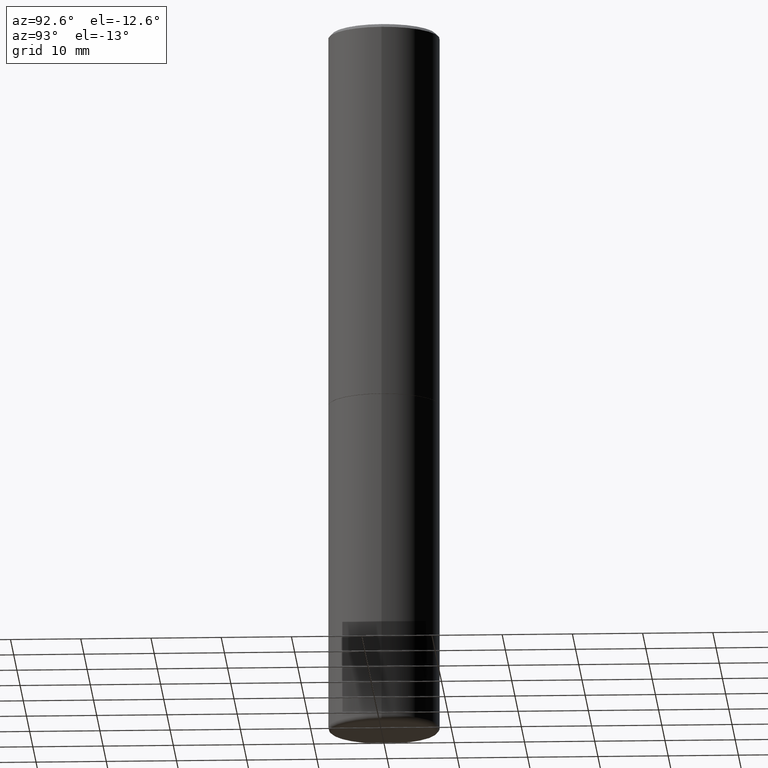
[diagram: clean part render]
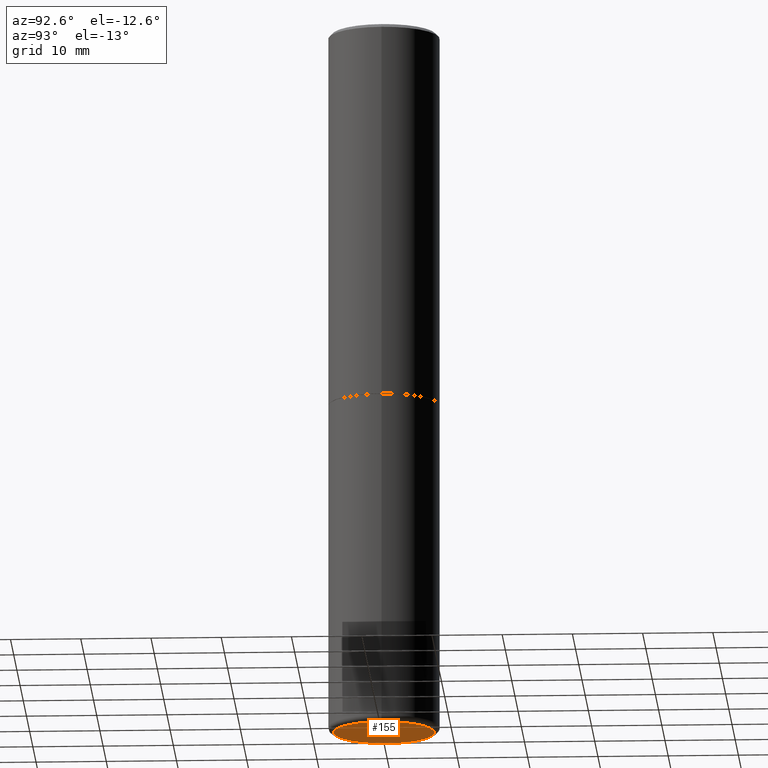
[diagram: same view with one face highlighted and labeled with its STEP entity id]
A machine part, auxiliary view. The second image highlights one B-rep face of the part: STEP entity #155.
In plain terms, the highlighted planar face has unit normal (0, -0, -1).
Its self-contained STEP definition (entity closure, byte-faithful):
#9 = DIRECTION ( 'NONE',  ( -2.445468806185136597E-29, 3.491481338843145583E-15, 1.000000000000000000 ) ) ;
#16 = DIRECTION ( 'NONE',  ( -2.445468806185136597E-29, 3.491481338843145583E-15, 1.000000000000000000 ) ) ;
#20 = CIRCLE ( 'NONE', #249, 0.2825000000000000289 ) ;
#27 = VERTEX_POINT ( 'NONE', #163 ) ;
#41 = AXIS2_PLACEMENT_3D ( 'NONE', #71, #9, #109 ) ;
#58 = EDGE_LOOP ( 'NONE', ( #322, #317 ) ) ;
#59 = CARTESIAN_POINT ( 'NONE',  ( 9.781875224740546387E-29, -1.396592535537258233E-14, -4.000000000000000000 ) ) ;
#71 = CARTESIAN_POINT ( 'NONE',  ( 9.781875224740546387E-29, -1.396592535537258233E-14, -4.000000000000000000 ) ) ;
#109 = DIRECTION ( 'NONE',  ( 1.000000000000000000, -6.982962677686269077E-15, 0.000000000000000000 ) ) ;
#155 = ADVANCED_FACE ( 'NONE', ( #156 ), #245, .T. ) ;
#156 = FACE_OUTER_BOUND ( 'NONE', #58, .T. ) ;
#163 = CARTESIAN_POINT ( 'NONE',  ( -0.2825000000000000289, -1.179968849640363848E-14, -4.000000000000000000 ) ) ;
#176 = DIRECTION ( 'NONE',  ( 1.000000000000000000, -6.982962677686269077E-15, 0.000000000000000000 ) ) ;
#182 = CARTESIAN_POINT ( 'NONE',  ( 0.2825000000000000289, -1.593861231181895394E-14, -4.000000000000000000 ) ) ;
#194 = CIRCLE ( 'NONE', #41, 0.2825000000000000289 ) ;
#238 = CARTESIAN_POINT ( 'NONE',  ( 9.781875224740546387E-29, -1.396592535537258233E-14, -4.000000000000000000 ) ) ;
#245 = PLANE ( 'NONE',  #280 ) ;
#249 = AXIS2_PLACEMENT_3D ( 'NONE', #238, #16, #176 ) ;
#252 = EDGE_CURVE ( 'NONE', #346, #27, #194, .T. ) ;
#280 = AXIS2_PLACEMENT_3D ( 'NONE', #59, #381, #320 ) ;
#317 = ORIENTED_EDGE ( 'NONE', *, *, #330, .F. ) ;
#320 = DIRECTION ( 'NONE',  ( -1.000000000000000000, 6.982962677686265922E-15, -4.876176775795935793E-29 ) ) ;
#322 = ORIENTED_EDGE ( 'NONE', *, *, #252, .F. ) ;
#330 = EDGE_CURVE ( 'NONE', #27, #346, #20, .T. ) ;
#346 = VERTEX_POINT ( 'NONE', #182 ) ;
#381 = DIRECTION ( 'NONE',  ( 2.438088387897960049E-29, -3.491481338843145188E-15, -1.000000000000000000 ) ) ;